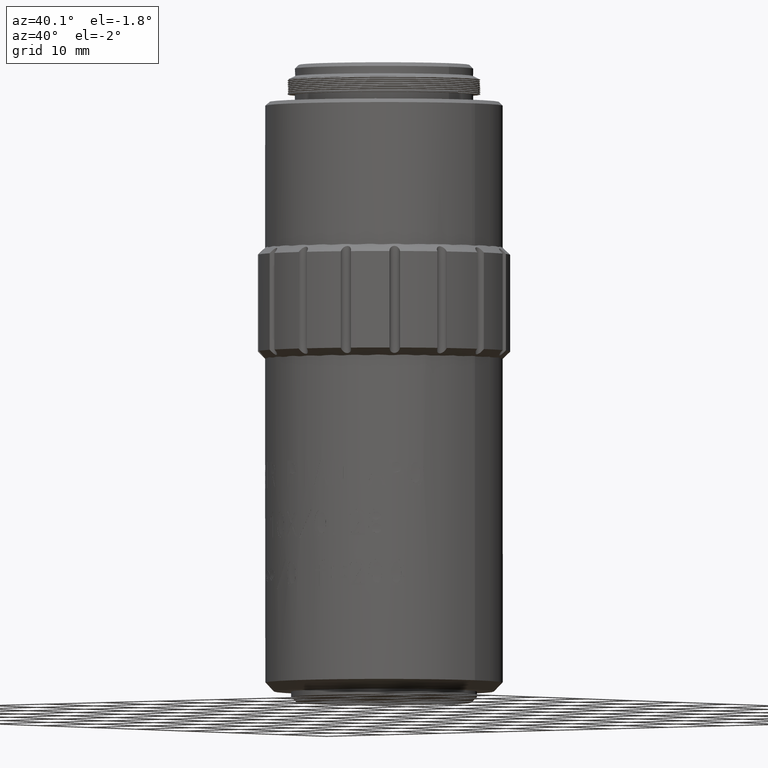
[diagram: clean part render]
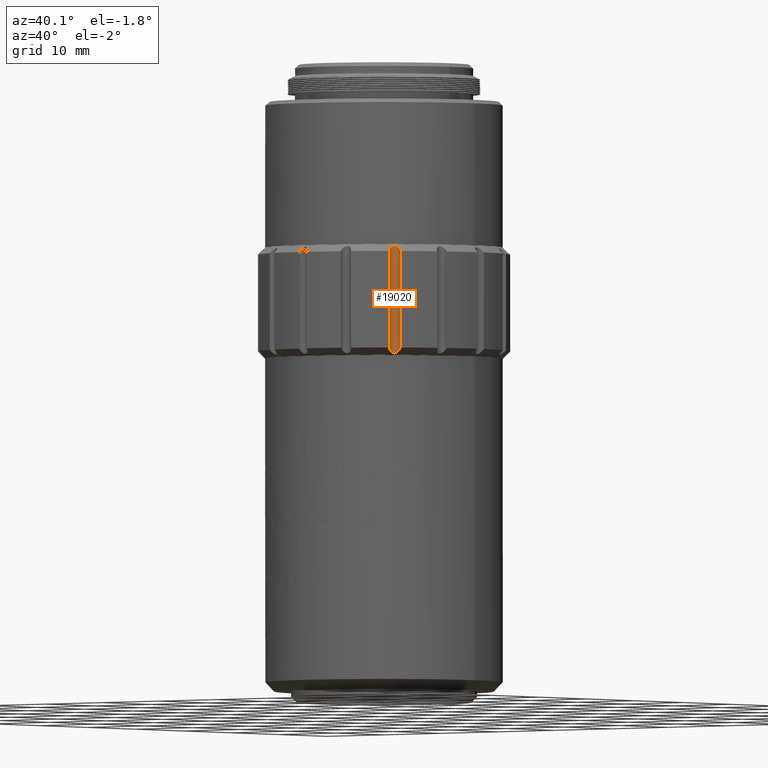
[diagram: same view with one face highlighted and labeled with its STEP entity id]
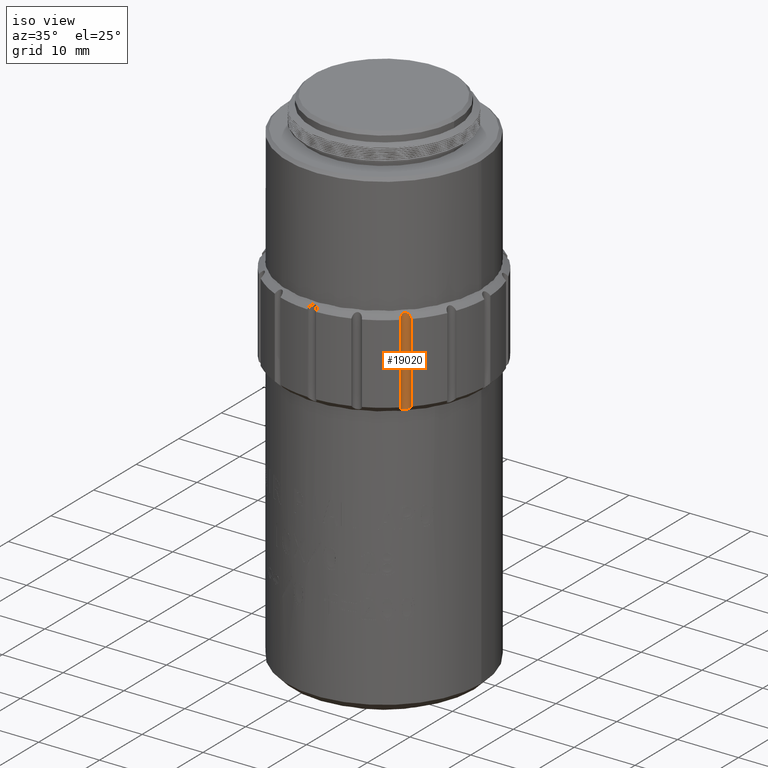
[diagram: same view with one face highlighted and labeled with its STEP entity id]
A machine part, auxiliary view. The second image highlights one B-rep face of the part: STEP entity #19020.
A second angle (iso view) of the same face is appended — the face is thin or edge-on in the first view.
In plain terms, the highlighted cylindrical surface (edge-blend (fillet) strip) has radius 0.7081 mm, axis along (-0, -0, 1).
Its self-contained STEP definition (entity closure, byte-faithful):
#57 = VECTOR ( 'NONE', #20622, 1000.000000000000000 ) ;
#310 = CARTESIAN_POINT ( 'NONE',  ( -110.1520451866487917, 10.50551759387985129, -6.499999999999999112 ) ) ;
#461 = CARTESIAN_POINT ( 'NONE',  ( -111.3548815014906950, 10.02965460616445981, -7.021922413567939003 ) ) ;
#1239 = DIRECTION ( 'NONE',  ( 0.000000000000000000, 0.000000000000000000, -1.000000000000000000 ) ) ;
#2677 = CARTESIAN_POINT ( 'NONE',  ( -110.4156203995653556, 10.68812140473452033, -6.817917757091784381 ) ) ;
#2732 = CARTESIAN_POINT ( 'NONE',  ( -110.1520451866487917, 10.50551759387985129, 6.500000000000000000 ) ) ;
#2818 = CARTESIAN_POINT ( 'NONE',  ( -110.2742771506918871, 10.60481620200583919, 6.657200975131936538 ) ) ;
#3360 = CARTESIAN_POINT ( 'NONE',  ( -111.1532488683255195, 9.504313912203135928, -6.499999999999999112 ) ) ;
#4165 = VERTEX_POINT ( 'NONE', #3360 ) ;
#5057 = CARTESIAN_POINT ( 'NONE',  ( -111.2803527081104704, 10.31794703724820295, -7.178683898143444431 ) ) ;
#5212 = CARTESIAN_POINT ( 'NONE',  ( -110.7744579832573066, 10.69747345010514117, -7.085877810620002215 ) ) ;
#5359 = B_SPLINE_CURVE_WITH_KNOTS ( 'NONE', 3,
 ( #29693, #8055, #11008, #22091, #7434, #461, #17051, #5057, #27001, #17207, #17363, #5212, #14692, #2677, #21937, #310 ),
 .UNSPECIFIED., .F., .F.,
 ( 4, 2, 2, 2, 2, 2, 2, 4 ),
 ( 2.788950520487731500E-07, 0.0003320497425292276710, 0.0006638205900064065483, 0.0009955914374835854799, 0.001327362284960764303, 0.001659133132437943126, 0.001990903979915122166, 0.002654445674869479813 ),
 .UNSPECIFIED. ) ;
#6510 = VERTEX_POINT ( 'NONE', #15796 ) ;
#7271 = CARTESIAN_POINT ( 'NONE',  ( -111.3358526791801637, 9.767889125119696203, 6.817917757091786157 ) ) ;
#7360 = ORIENTED_EDGE ( 'NONE', *, *, #11942, .T. ) ;
#7422 = CARTESIAN_POINT ( 'NONE',  ( -111.2630754731478362, 9.618813529981789401, 6.658622593199107875 ) ) ;
#7434 = CARTESIAN_POINT ( 'NONE',  ( -111.3419023495018934, 9.854602679465513049, -6.885319302732679780 ) ) ;
#7731 = CARTESIAN_POINT ( 'NONE',  ( -110.6773858806101600, 10.70715022704500896, 7.021922413567945220 ) ) ;
#8055 = CARTESIAN_POINT ( 'NONE',  ( -111.2081576685521469, 9.561559027344452844, -6.579304794093290276 ) ) ;
#8256 = CYLINDRICAL_SURFACE ( 'NONE', #26754, 0.7081115031153523143 ) ;
#8332 = CARTESIAN_POINT ( 'NONE',  ( -111.1532488683255053, 9.504313912203135928, -5.050000000000006928 ) ) ;
#10052 = VECTOR ( 'NONE', #1239, 1000.000000000000000 ) ;
#10797 = EDGE_LOOP ( 'NONE', ( #18248, #16543, #7360, #13588 ) ) ;
#10888 = CARTESIAN_POINT ( 'NONE',  ( -110.1520451866487917, 10.50551759387984774, -5.050000000000006928 ) ) ;
#10936 = FACE_OUTER_BOUND ( 'NONE', #10797, .T. ) ;
#11008 = CARTESIAN_POINT ( 'NONE',  ( -111.2525474764514968, 9.626545876246218825, -6.657200975131933873 ) ) ;
#11942 = EDGE_CURVE ( 'NONE', #16895, #14430, #22753, .T. ) ;
#12312 = CARTESIAN_POINT ( 'NONE',  ( -111.1532488683255195, 9.504313912203135928, 6.500000000000000000 ) ) ;
#12467 = CARTESIAN_POINT ( 'NONE',  ( -110.4204282867770388, 10.67175492490516575, 6.809977491739672040 ) ) ;
#12521 = EDGE_CURVE ( 'NONE', #16895, #6510, #17511, .T. ) ;
#13420 = EDGE_CURVE ( 'NONE', #4165, #6510, #5359, .T. ) ;
#13588 = ORIENTED_EDGE ( 'NONE', *, *, #30011, .F. ) ;
#14430 = VERTEX_POINT ( 'NONE', #15457 ) ;
#14692 = CARTESIAN_POINT ( 'NONE',  ( -110.6792657443018300, 10.70709729374562080, -7.023254621753834748 ) ) ;
#15437 = LINE ( 'NONE', #8332, #57 ) ;
#15457 = CARTESIAN_POINT ( 'NONE',  ( -111.1532488683255195, 9.504313912203135928, 6.500000000000000000 ) ) ;
#15796 = CARTESIAN_POINT ( 'NONE',  ( -110.1520451866487917, 10.50551759387985129, -6.499999999999999112 ) ) ;
#16543 = ORIENTED_EDGE ( 'NONE', *, *, #12521, .F. ) ;
#16895 = VERTEX_POINT ( 'NONE', #2732 ) ;
#17051 = CARTESIAN_POINT ( 'NONE',  ( -111.3457274845491867, 10.12455083440739934, -7.084665610043470174 ) ) ;
#17207 = CARTESIAN_POINT ( 'NONE',  ( -111.0649831391582012, 10.57337205736953756, -7.208279676267789426 ) ) ;
#17351 = CARTESIAN_POINT ( 'NONE',  ( -110.9656783116938925, 10.63262143366481283, 7.178683898143440878 ) ) ;
#17363 = CARTESIAN_POINT ( 'NONE',  ( -110.9661908024059187, 10.63223242762738074, -7.178776448947755462 ) ) ;
#17511 = LINE ( 'NONE', #10888, #10052 ) ;
#17877 = DIRECTION ( 'NONE',  ( 1.000000000000000000, 0.000000000000000000, 0.000000000000000000 ) ) ;
#18248 = ORIENTED_EDGE ( 'NONE', *, *, #13420, .T. ) ;
#19020 = ADVANCED_FACE ( 'NONE', ( #10936 ), #8256, .F. ) ;
#19403 = CARTESIAN_POINT ( 'NONE',  ( -111.2799637020730614, 10.31845952796024513, 7.178776448947758126 ) ) ;
#19713 = CARTESIAN_POINT ( 'NONE',  ( -110.5023339539111760, 10.69417107505624642, 6.885319302732685109 ) ) ;
#20547 = CARTESIAN_POINT ( 'NONE',  ( -110.6422188267129627, 9.994487552267301567, -30.05000000000000782 ) ) ;
#20622 = DIRECTION ( 'NONE',  ( -0.000000000000000000, -0.000000000000000000, 1.000000000000000000 ) ) ;
#21924 = CARTESIAN_POINT ( 'NONE',  ( -111.0632989246838775, 10.57459830481164786, 7.207941769656400766 ) ) ;
#21937 = CARTESIAN_POINT ( 'NONE',  ( -110.2665448044274257, 10.61534419870216794, -6.658622593199103434 ) ) ;
#22091 = CARTESIAN_POINT ( 'NONE',  ( -111.3194861993508198, 9.772697012331363453, -6.809977491739668487 ) ) ;
#22753 = B_SPLINE_CURVE_WITH_KNOTS ( 'NONE', 3,
 ( #29058, #26519, #2818, #12467, #19713, #7731, #24306, #17351, #21924, #23842, #19403, #23997, #24148, #7271, #7422, #12312 ),
 .UNSPECIFIED., .F., .F.,
 ( 4, 2, 2, 2, 2, 2, 2, 4 ),
 ( 2.788950520326076321E-07, 0.0003320497425292097816, 0.0006638205900063870327, 0.0009955914374835642296, 0.001327362284960741318, 0.001659133132437918623, 0.001990903979915096145, 0.002654445674869449889 ),
 .UNSPECIFIED. ) ;
#23842 = CARTESIAN_POINT ( 'NONE',  ( -111.2211033318151721, 10.41725186471254538, 7.208279676267790315 ) ) ;
#23997 = CARTESIAN_POINT ( 'NONE',  ( -111.3452047245508112, 10.12672670881164727, 7.085877810620005768 ) ) ;
#24148 = CARTESIAN_POINT ( 'NONE',  ( -111.3548285681913086, 10.03153446985617769, 7.023254621753833860 ) ) ;
#24306 = CARTESIAN_POINT ( 'NONE',  ( -110.7722821088530480, 10.69799621010350954, 7.084665610043465733 ) ) ;
#26519 = CARTESIAN_POINT ( 'NONE',  ( -110.2092903017901193, 10.56042639410648221, 6.579304794093293829 ) ) ;
#26754 = AXIS2_PLACEMENT_3D ( 'NONE', #20547, #30204, #17877 ) ;
#27001 = CARTESIAN_POINT ( 'NONE',  ( -111.2223295792573055, 10.41556765023821463, -7.207941769656401654 ) ) ;
#29058 = CARTESIAN_POINT ( 'NONE',  ( -110.1520451866487917, 10.50551759387985129, 6.500000000000000000 ) ) ;
#29693 = CARTESIAN_POINT ( 'NONE',  ( -111.1532488683255195, 9.504313912203135928, -6.499999999999999112 ) ) ;
#30011 = EDGE_CURVE ( 'NONE', #4165, #14430, #15437, .T. ) ;
#30204 = DIRECTION ( 'NONE',  ( -0.000000000000000000, -0.000000000000000000, 1.000000000000000000 ) ) ;